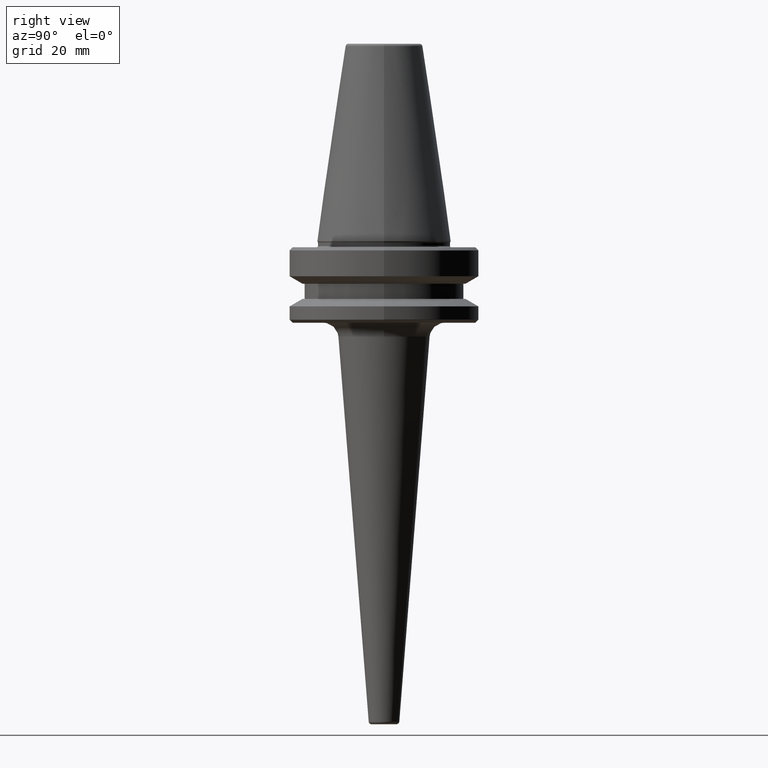
[diagram: clean part render]
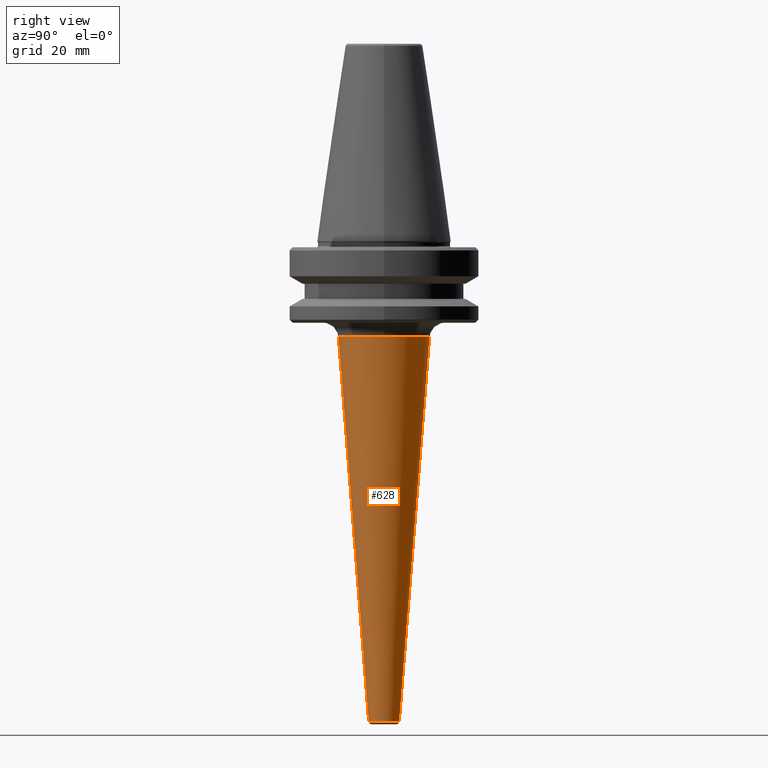
[diagram: same view with one face highlighted and labeled with its STEP entity id]
A machine part, right view. The second image highlights one B-rep face of the part: STEP entity #628.
In plain terms, the highlighted conical surface has half-angle 4.5 deg.
Its self-contained STEP definition (entity closure, byte-faithful):
#19 = LINE ( 'NONE', #128, #1003 ) ;
#46 = CARTESIAN_POINT ( 'NONE',  ( 0.0000000000000000000, 5.072526842074913700, -159.0784590957278500 ) ) ;
#76 = DIRECTION ( 'NONE',  ( 0.0000000000000000000, 1.000000000000000000, 0.0000000000000000000 ) ) ;
#85 = CARTESIAN_POINT ( 'NONE',  ( 0.0000000000000000000, -5.072526842074902100, -159.0784590957278500 ) ) ;
#105 = CIRCLE ( 'NONE', #510, 5.072526842074907400 ) ;
#128 = CARTESIAN_POINT ( 'NONE',  ( 6.212053760736066900E-016, 5.072526842074912800, -159.0784590957278500 ) ) ;
#137 = ORIENTED_EDGE ( 'NONE', *, *, #874, .T. ) ;
#182 = VERTEX_POINT ( 'NONE', #783 ) ;
#225 = CARTESIAN_POINT ( 'NONE',  ( 6.212053760736068900E-016, -5.072526842074903900, -159.0784590957278500 ) ) ;
#234 = DIRECTION ( 'NONE',  ( -0.0000000000000000000, 3.683148268112341600E-017, -1.000000000000000000 ) ) ;
#239 = EDGE_CURVE ( 'NONE', #1017, #563, #105, .T. ) ;
#281 = CIRCLE ( 'NONE', #1144, 15.10469279729871100 ) ;
#302 = VERTEX_POINT ( 'NONE', #570 ) ;
#306 = DIRECTION ( 'NONE',  ( 0.0000000000000000000, -1.000000000000000000, 0.0000000000000000000 ) ) ;
#327 = CARTESIAN_POINT ( 'NONE',  ( 0.0000000000000000000, 4.864645478733767700E-015, -159.0784590957278500 ) ) ;
#430 = CARTESIAN_POINT ( 'NONE',  ( -4.753169694930506000E-015, 4.879094302861149800E-015, -31.60770452136080900 ) ) ;
#439 = LINE ( 'NONE', #85, #1149 ) ;
#464 = DIRECTION ( 'NONE',  ( 0.0000000000000000000, -0.07845909572783782400, 0.9969173337331285200 ) ) ;
#503 = ORIENTED_EDGE ( 'NONE', *, *, #868, .T. ) ;
#510 = AXIS2_PLACEMENT_3D ( 'NONE', #1211, #641, #76 ) ;
#524 = DIRECTION ( 'NONE',  ( 0.0000000000000000000, -1.000000000000000000, 0.0000000000000000000 ) ) ;
#531 = CARTESIAN_POINT ( 'NONE',  ( 0.0000000000000000000, -15.10469279729871100, -31.60770452136080900 ) ) ;
#563 = VERTEX_POINT ( 'NONE', #225 ) ;
#568 = EDGE_CURVE ( 'NONE', #1017, #302, #19, .T. ) ;
#570 = CARTESIAN_POINT ( 'NONE',  ( 1.849791368631594700E-015, 15.10469279729871100, -31.60770452136080900 ) ) ;
#628 = ADVANCED_FACE ( 'NONE', ( #983 ), #1208, .T. ) ;
#641 = DIRECTION ( 'NONE',  ( -0.0000000000000000000, 3.683148268112341600E-017, -1.000000000000000000 ) ) ;
#752 = ORIENTED_EDGE ( 'NONE', *, *, #1191, .F. ) ;
#755 = EDGE_LOOP ( 'NONE', ( #1224, #881, #503, #137, #752 ) ) ;
#783 = CARTESIAN_POINT ( 'NONE',  ( 15.10469279729870500, 7.034103576935441600E-015, -31.60770452136080900 ) ) ;
#794 = CARTESIAN_POINT ( 'NONE',  ( -4.753169694930506000E-015, 4.879094302861149800E-015, -31.60770452136080900 ) ) ;
#865 = DIRECTION ( 'NONE',  ( 0.0000000000000000000, -3.683148268112341600E-017, 1.000000000000000000 ) ) ;
#868 = EDGE_CURVE ( 'NONE', #302, #182, #1057, .T. ) ;
#874 = EDGE_CURVE ( 'NONE', #182, #1099, #281, .T. ) ;
#881 = ORIENTED_EDGE ( 'NONE', *, *, #568, .T. ) ;
#898 = DIRECTION ( 'NONE',  ( 0.0000000000000000000, -1.000000000000000000, 0.0000000000000000000 ) ) ;
#920 = AXIS2_PLACEMENT_3D ( 'NONE', #327, #865, #306 ) ;
#983 = FACE_OUTER_BOUND ( 'NONE', #755, .T. ) ;
#985 = DIRECTION ( 'NONE',  ( 9.608468044709232200E-018, 0.07845909572783774100, 0.9969173337331285200 ) ) ;
#1003 = VECTOR ( 'NONE', #985, 1000.000000000000000 ) ;
#1017 = VERTEX_POINT ( 'NONE', #46 ) ;
#1057 = CIRCLE ( 'NONE', #1086, 15.10469279729871100 ) ;
#1086 = AXIS2_PLACEMENT_3D ( 'NONE', #794, #234, #898 ) ;
#1092 = DIRECTION ( 'NONE',  ( -0.0000000000000000000, 3.683148268112341600E-017, -1.000000000000000000 ) ) ;
#1099 = VERTEX_POINT ( 'NONE', #531 ) ;
#1144 = AXIS2_PLACEMENT_3D ( 'NONE', #430, #1092, #524 ) ;
#1149 = VECTOR ( 'NONE', #464, 1000.000000000000000 ) ;
#1191 = EDGE_CURVE ( 'NONE', #563, #1099, #439, .T. ) ;
#1208 = CONICAL_SURFACE ( 'NONE', #920, 5.072526842074907400, 0.07853981633973765300 ) ;
#1211 = CARTESIAN_POINT ( 'NONE',  ( 0.0000000000000000000, 4.864645478733767700E-015, -159.0784590957278500 ) ) ;
#1224 = ORIENTED_EDGE ( 'NONE', *, *, #239, .F. ) ;